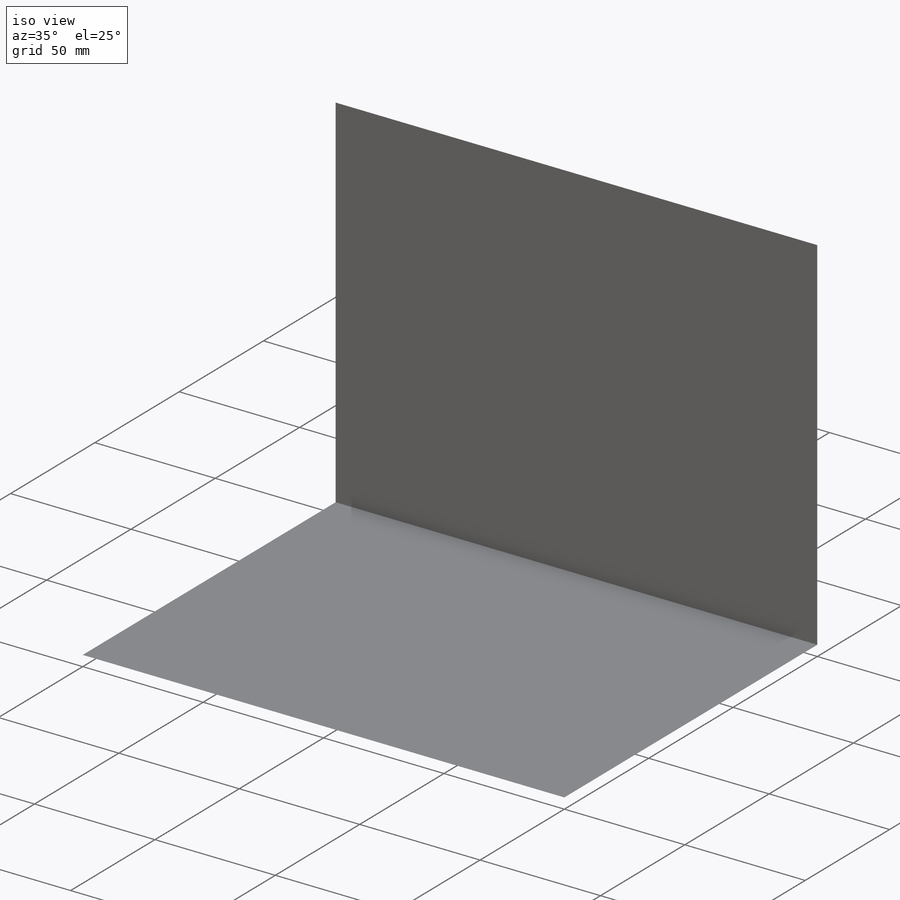
[diagram: iso view]
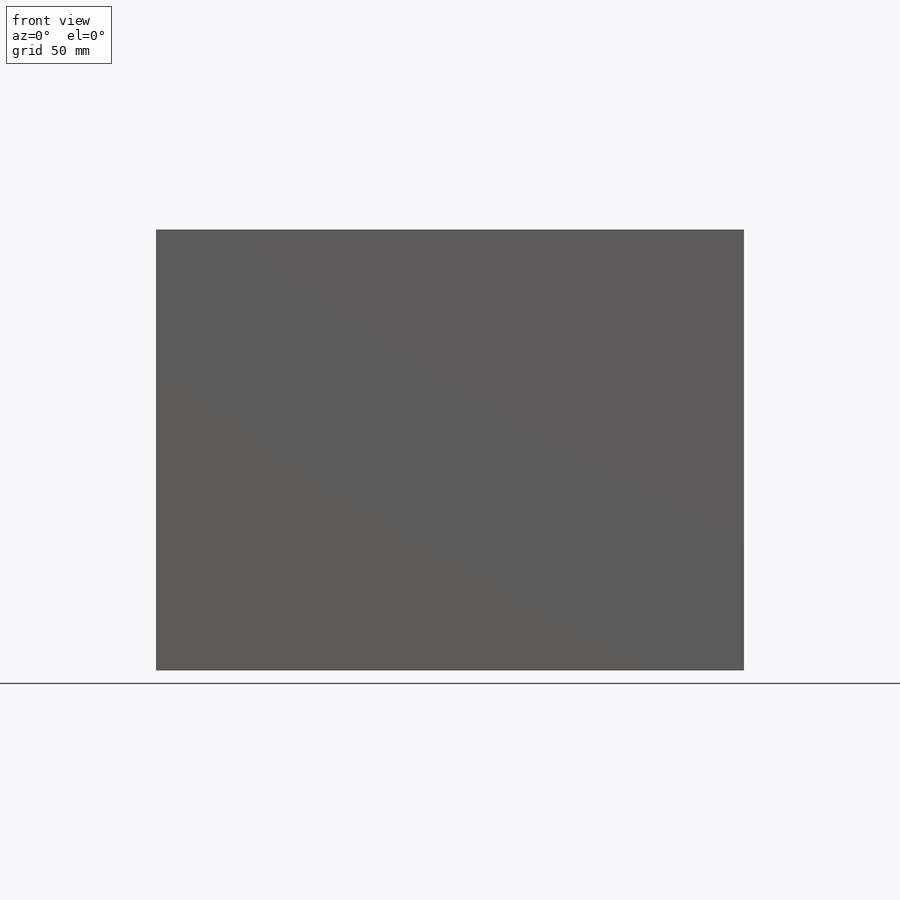
[diagram: front view]
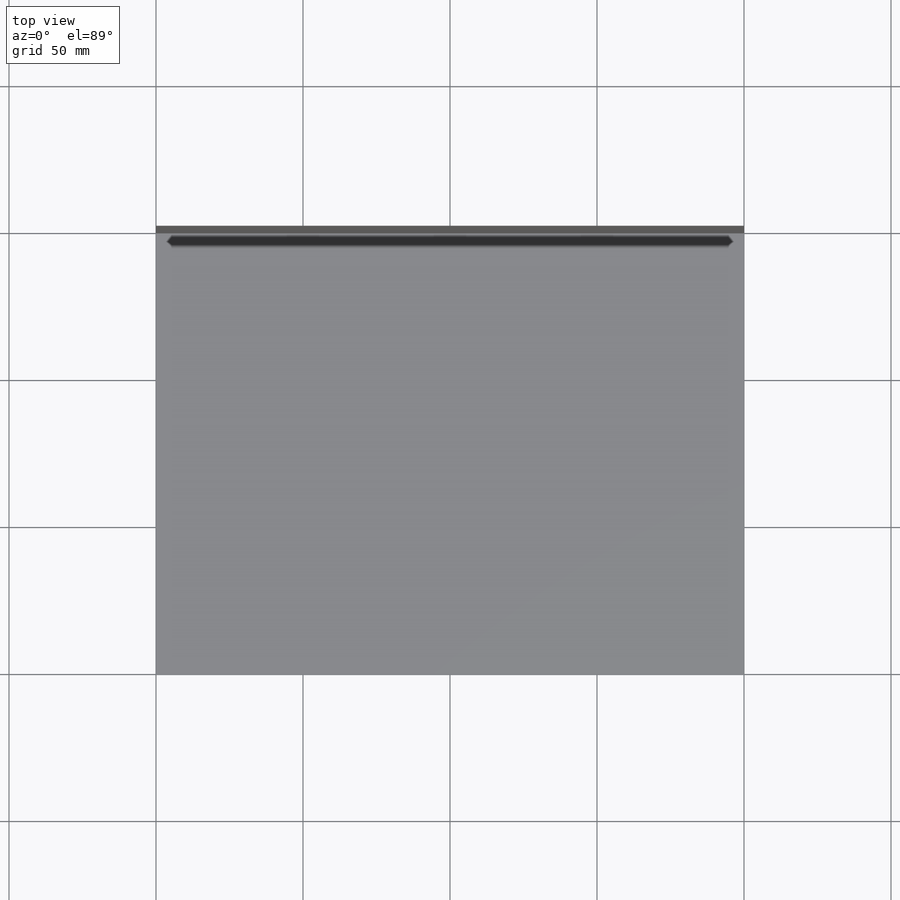
[diagram: top view]
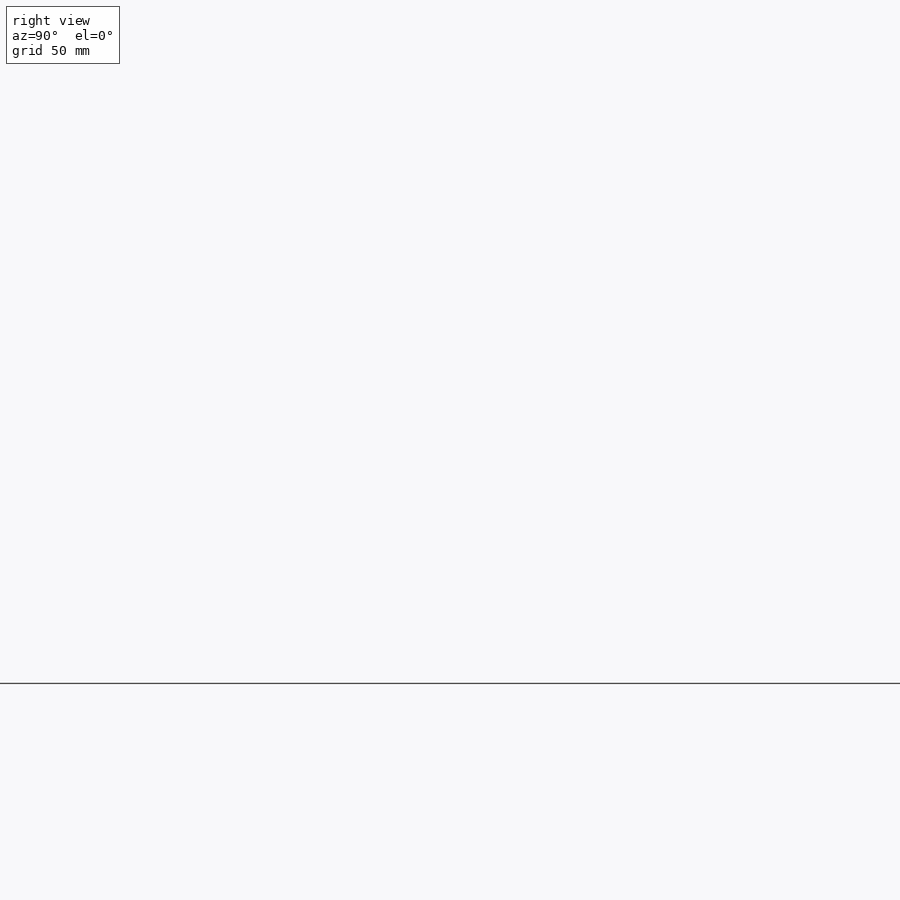
[diagram: right view]
SOLIDWORKS PART (.sldprt)
format: sldprt  version: not decoded by parser v0  size: 212,992 bytes
history: native  units: mm
features: sketch x4, extrude x2, material x1, plane x1 (+13 scaffold rows collapsed)
feature tree (21):
  scaffold x13  (default folders/planes/origin — collapsed)
  material  "Material <not specified>"
  sketch  "Sketch1"  dims[D1=150.0mm D2=200.0mm]
  extrude  "Extrude1"  Depth=0.0001mm
  sketch  "Sketch2"  dims[D1=200.0mm D2=150.0mm]
  extrude  "Extrude2"  Depth=0.0001mm
  sketch  "Sketch3"  dims[D1=150.0mm]
  plane  "Plane1"
  sketch  "Sketch4"  dims[D1=160.0mm D2=130.0mm]
decode coverage: 6 of 6 modeling features carry decoded parameters
note: suppression state not decoded; provenance and decode notes live in map.json
